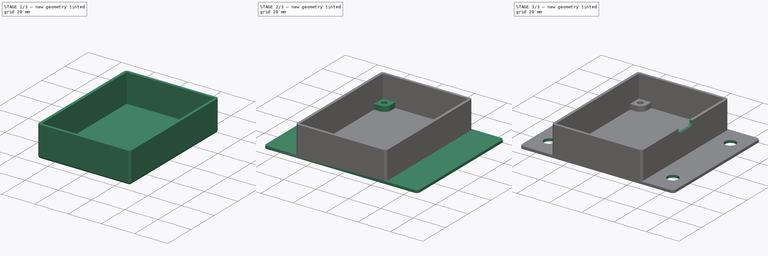
[diagram: build sequence overview — one tinted view per stage of 3, left to right]
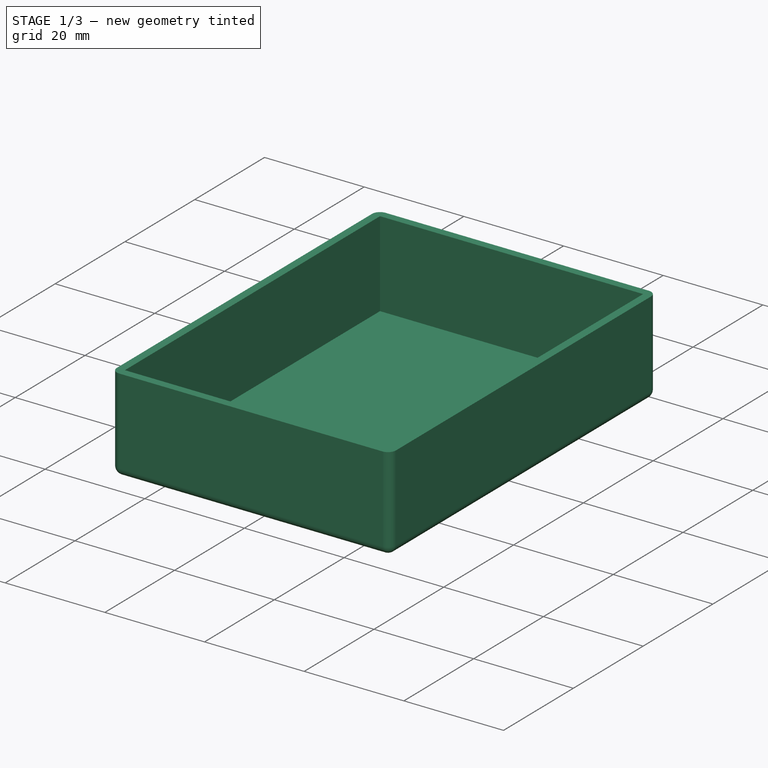
[diagram: stage 1 of 3 — iso view after this stage's code; geometry added in this stage tinted green]
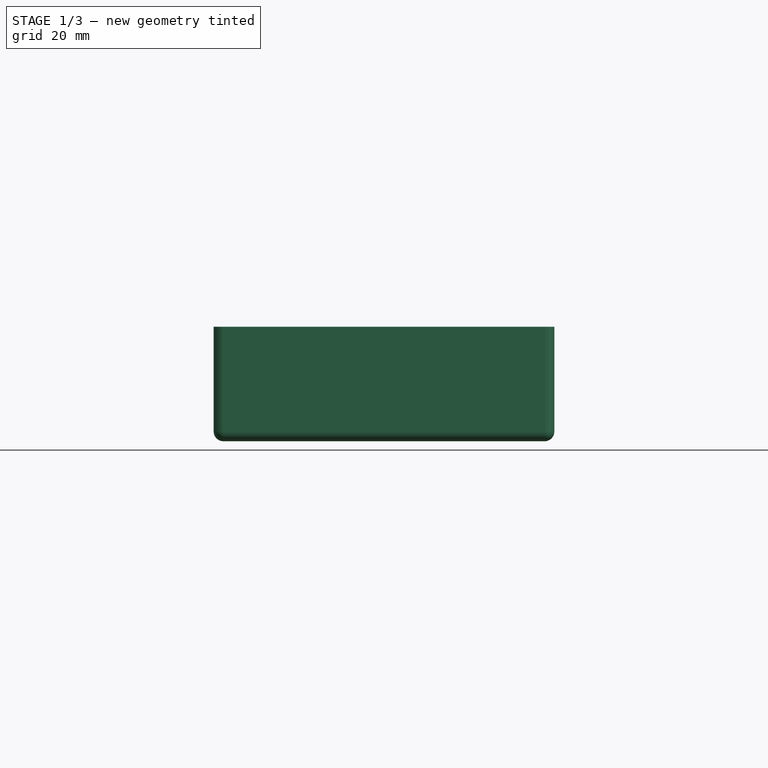
[diagram: stage 1 of 3 — front view after this stage's code; geometry added in this stage tinted green]
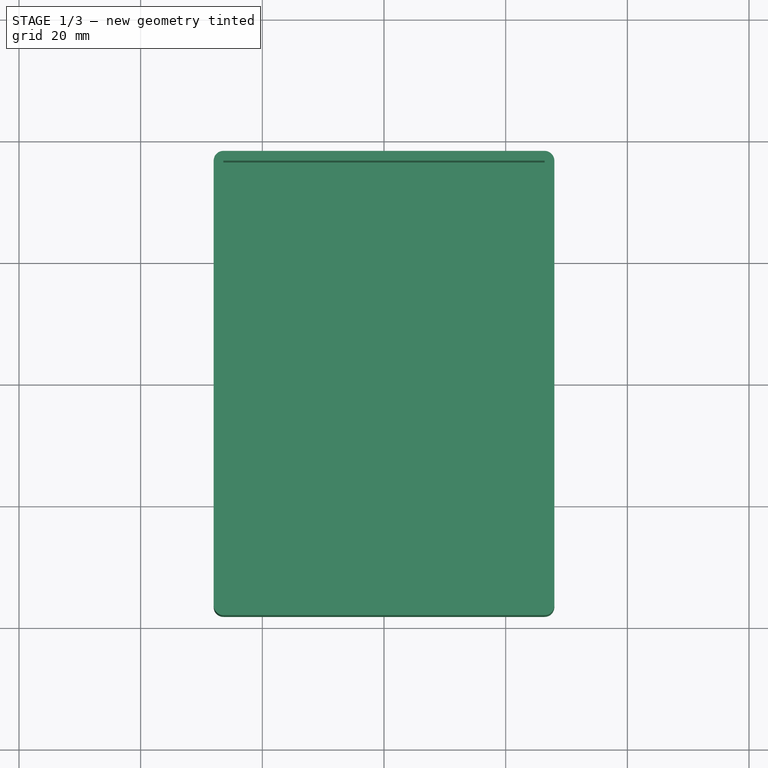
[diagram: stage 1 of 3 — top view after this stage's code; geometry added in this stage tinted green]
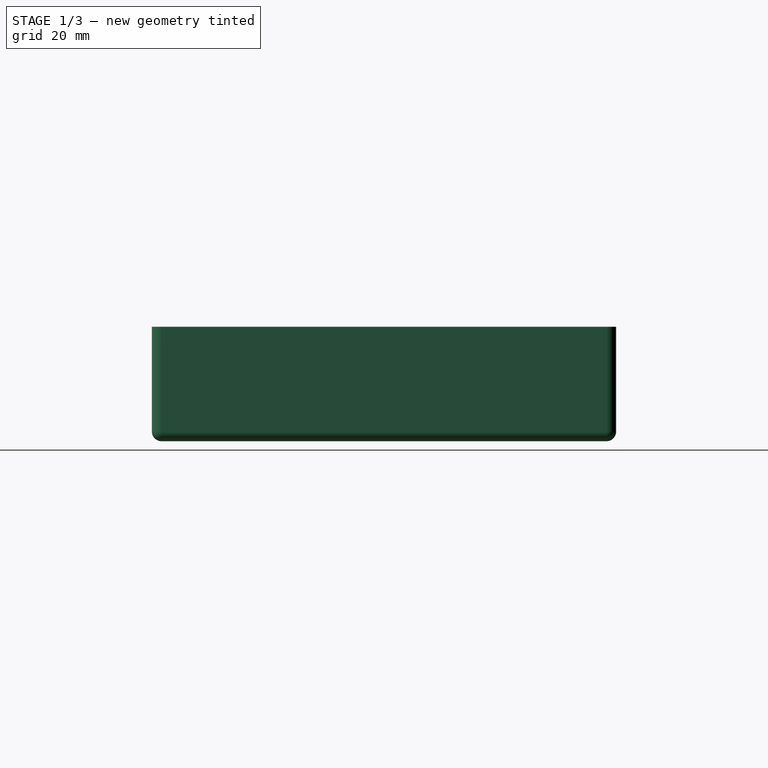
[diagram: stage 1 of 3 — right view after this stage's code; geometry added in this stage tinted green]
FCSTD DOCUMENT  (FreeCAD 1.0R39285 (Git))
Label: feather_tripler_enclosure
License: All rights reserved
LicenseURL: https://en.wikipedia.org/wiki/All_rights_reserved
objects: Sketcher::SketchObject×5, PartDesign::Pad×3, PartDesign::Mirrored×2, PartDesign::Pocket×2, Spreadsheet::Sheet×1, PartDesign::Thickness×1, PartDesign::MultiTransform×1, PartDesign::Plane×1, PartDesign::Body×1
note: 36 computed .brp shape members not serialized (recipe doc carries the construction recipe); baked Part::Feature solids carry a one-line shape summary decoded from their .brp

FEATURE [Spreadsheet::Sheet] Spreadsheet
  cells = A2='Design Parameters; A4='thread_insert_2_56_length; B4(thread_insert_2_56_length)==0.115 in; A5='thread_insert_2_56_hole_diameter; B5(thread_insert_2_56_hole_diameter)==0.1315 in; A6='thread_insert_2_56_bottom_margin; B6(thread_insert_2_56_bottom_margin)==1 mm; A8='feather3_length; B8(feather3_length)==2.8 in; A9='feather3_width; B9(feather3_width)==2 in; A10='feather3_lengthwise_hole_spacing; B10(feather3_lengthwise_hole_spacing)==3 * 0.7 in + 2 * 0.25 in; A11='feather3_widthwise_hole_spacing; B11(feather3_widthwise_hole_spacing)==1.8 in; A12='feather3_usb_clearance_width; B12(feather3_usb_clearance_width)==11 mm; A13='feather3_usb_clearance_depth; B13(feather3_usb_clearance_depth)==2.5 mm; A14='feather3_inside_margin; B14(feather3_inside_margin)==1 mm; A15='feather3_stack_height; B15(feather3_stack_height)==14 mm; A16='feather3_mount_insert_hole_diameter; B16(feather3_mount_insert_hole_diameter)==0.1315 in; A17='feather3_mount_insert_length; B17(feather3_mount_insert_length)==0.115 in; A18='feather3_mount_insert_length_margin; B18(feather3_mount_insert_length_margin)==0.3 mm; A19='feather3_mount_hole_boss_height; B19(feather3_mount_hole_boss_height)==feather3_mount_insert_length + feather3_mount_insert_length_margin; A20='feather3_mount_hole_boss_radius; B20(feather3_mount_hole_boss_radius)==0.5 * 2.5 * feather3_mount_insert_hole_diameter; A22='enclosure_inside_height; B22(enclosure_inside_height)==feather3_stack_height + feather3_mount_hole_boss_height; A23='enclosure_inside_width; B23(enclosure_inside_width)==feather3_width + 2 * feather3_inside_margin; A24='enclosure_inside_length; B24(enclosure_inside_length)==feather3_length + 2 * feather3_inside_margin; A25='enclosure_minimum_wall_thickness; B25(enclosure_minimum_wall_thickness)==1.6 mm; A26='enclosure_wall_thickness; B26(enclosure_wall_thickness)==max(enclosure_minimum_wall_thickness; thread_insert_2_56_length - feather3_mount_hole_boss_height + thread_insert_2_56_bottom_margin); A28='mount_flange_hole_spacing_widthwise; B28(mount_flange_hole_spacing_widthwise)==3 in; A29='mount_flange_hole_spacing_lengthwise; B29(mount_flange_hole_spacing_lengthwise)==2 in; A30='mount_flange_hole_diameter; B30(mount_flange_hole_diameter)==0.266 in; A31='mount_flange_washer_diameter; B31(mount_flange_washer_diameter)==0.625 in; A32='mount_flange_washer_margin; B32(mount_flange_washer_margin)==1.5 mm; A33='mount_flange_width; B33(mount_flange_width)==max(2 * mount_flange_washer_diameter + 4 * mount_flange_washer_margin + enclosure_inside_width + 2 * enclosure_wall_thickness; mount_flange_hole_spacing_widthwise + mount_flange_washer_diameter + 2 * mount_flange_washer_margin); A34='mount_flange_length; B34(mount_flange_length)==enclosure_inside_length + 2 * enclosure_wall_thickness; A35='mount_flange_thickness; B35(mount_flange_thickness)==enclosure_wall_thickness; A36='mount_flange_fillet_radius; B36(mount_flange_fillet_radius)==2 mm; A38='usb_cutout_width; B38(usb_cutout_width)==12 mm; A39='usb_cutout_depth; B39(usb_cutout_depth)==3 mm; A40='usb_cutout_radius; B40(usb_cutout_radius)==2 mm; A41='right_side_datum_plane_offset; B41(right_side_datum_plane_offset)==0.5 * enclosure_inside_width + enclosure_wall_thickness
FEATURE [Sketcher::SketchObject] Sketch  label="BaseSketch"
  ArcFitTolerance = 1e-06
  AttachmentSupport = -> [XY_Plane]
  FullyConstrained = true
  MakeInternals = false
  MapMode = 5
  expr: Constraints[10] = Spreadsheet.enclosure_inside_width
  expr: Constraints[11] = Spreadsheet.enclosure_inside_length
  sketch-geometry (5):
    g0: LineSegment StartX=-26.4 StartY=36.56 StartZ=0 EndX=-26.4 EndY=-36.56 EndZ=0
    g1: LineSegment StartX=-26.4 StartY=-36.56 StartZ=0 EndX=26.4 EndY=-36.56 EndZ=0
    g2: LineSegment StartX=26.4 StartY=-36.56 StartZ=0 EndX=26.4 EndY=36.56 EndZ=0
    g3: LineSegment StartX=26.4 StartY=36.56 StartZ=0 EndX=-26.4 EndY=36.56 EndZ=0
    g4: GeomPoint [constr] X=0 Y=0 Z=0
  constraints (12):
    c: Coincident(g0,g1)
    c: Coincident(g1,g2)
    c: Coincident(g2,g3)
    c: Coincident(g3,g0)
    c: Vertical(g0)
    c: Vertical(g2)
    c: Horizontal(g1)
    c: Horizontal(g3)
    c: Symmetric(g2,g0,g4)
    c: Coincident(g4,g-1)
    c: DistanceX(g3,g3) = 52.8
    c: DistanceY(g0,g0) = 73.12
FEATURE [PartDesign::Pad] Pad  label="BasePad"
  Direction = (0,0,1)
  Length = 17.221
  Length2 = 10
  Profile = -> Sketch
  ReferenceAxis = -> Sketch [N_Axis]
  Refine = true
  Suppressed = false
  Type = 0
  expr: Length = Spreadsheet.enclosure_inside_height
FEATURE [PartDesign::Thickness] Thickness  label="BaseThickness"
  Base = -> Pad [Face6]
  BaseFeature = -> Pad
  Intersection = false
  Join = 0
  Mode = 0
  Refine = true
  SupportTransform = false
  Suppressed = false
  Value = 1.6
  expr: Value = Spreadsheet.enclosure_wall_thickness
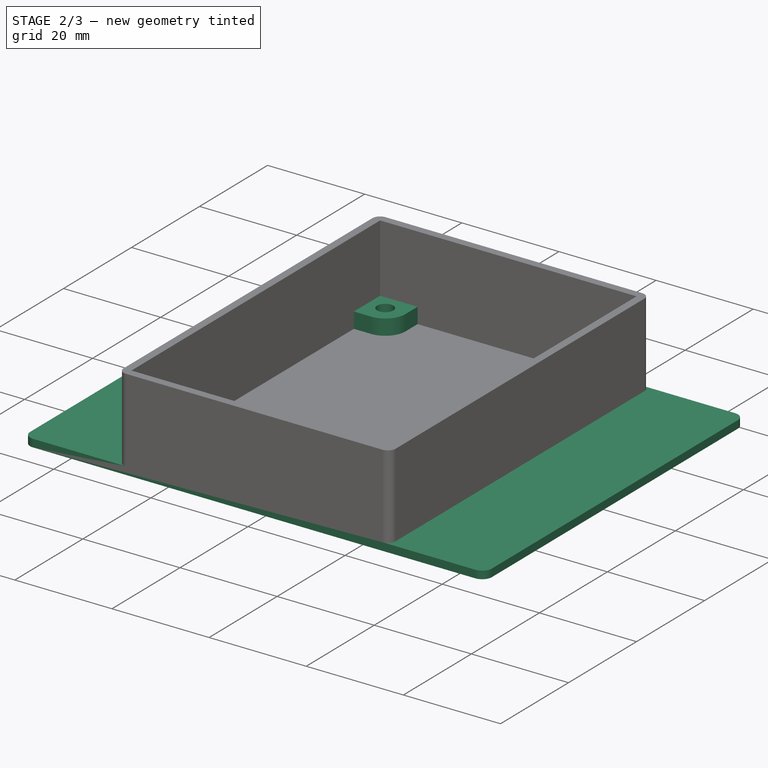
[diagram: stage 2 of 3 — iso view after this stage's code; geometry added in this stage tinted green]
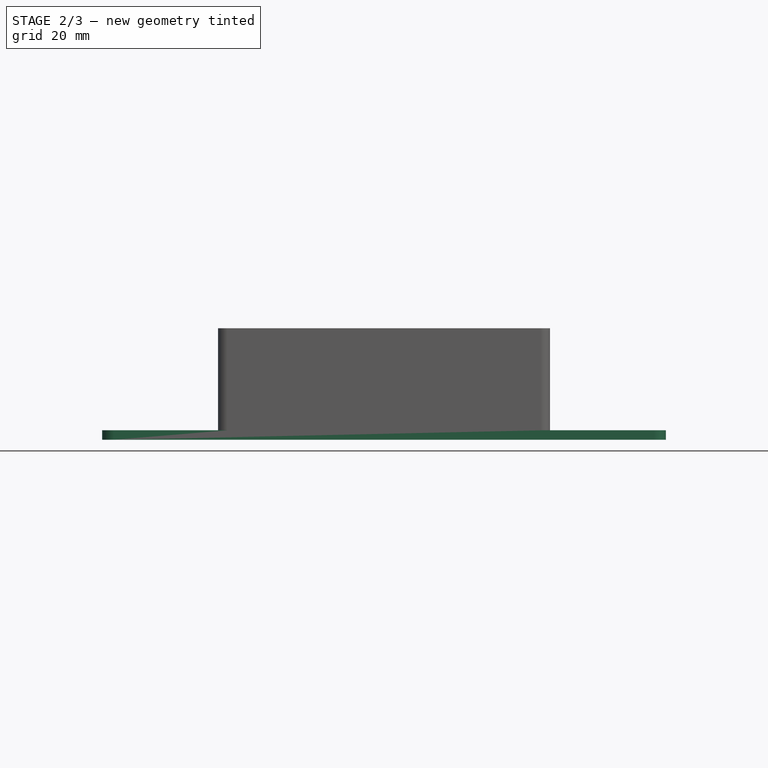
[diagram: stage 2 of 3 — front view after this stage's code; geometry added in this stage tinted green]
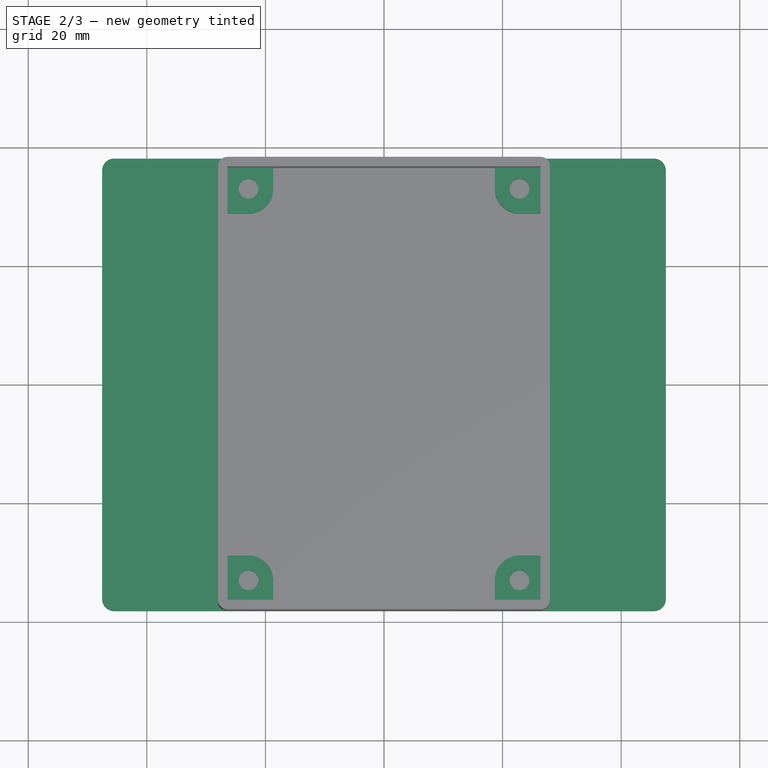
[diagram: stage 2 of 3 — top view after this stage's code; geometry added in this stage tinted green]
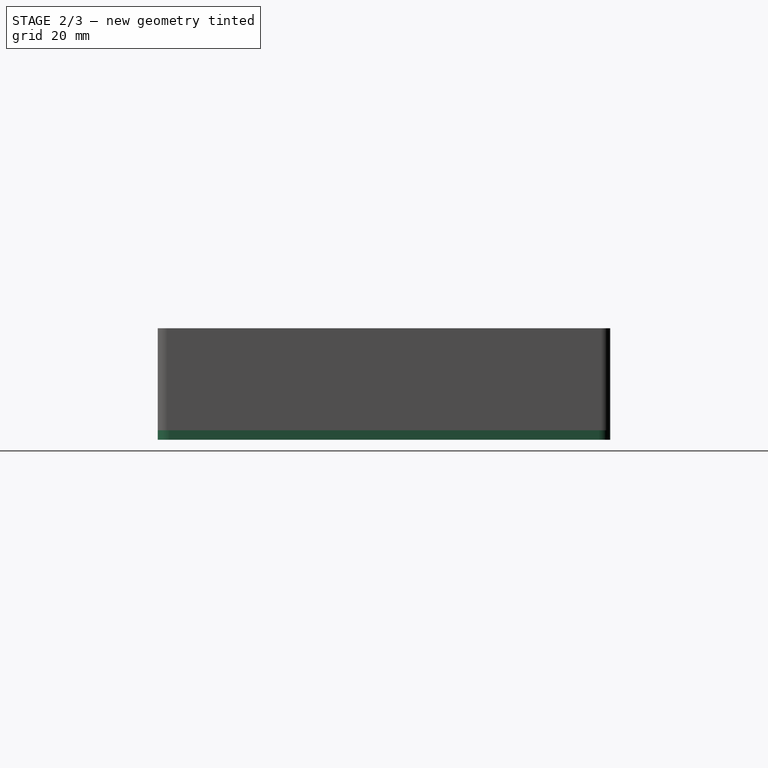
[diagram: stage 2 of 3 — right view after this stage's code; geometry added in this stage tinted green]
FEATURE [Sketcher::SketchObject] Sketch001  label="MountHoleBossSketch"
  ArcFitTolerance = 1e-06
  AttachmentSupport = -> [XY_Plane]
  FullyConstrained = true
  MakeInternals = false
  MapMode = 5
  expr: Constraints[10] = Spreadsheet.feather3_widthwise_hole_spacing
  expr: Constraints[11] = Spreadsheet.feather3_lengthwise_hole_spacing
  expr: Constraints[22] = Spreadsheet.enclosure_inside_width
  expr: Constraints[23] = Spreadsheet.enclosure_inside_length
  expr: Constraints[27] = Spreadsheet.feather3_mount_hole_boss_radius
  expr: Constraints[39] = Spreadsheet.feather3_mount_insert_hole_diameter
  sketch-geometry (16):
    g0: LineSegment [constr] StartX=-22.86 StartY=33.02 StartZ=0 EndX=-22.86 EndY=-33.02 EndZ=0
    g1: LineSegment [constr] StartX=-22.86 StartY=-33.02 StartZ=0 EndX=22.86 EndY=-33.02 EndZ=0
    g2: LineSegment [constr] StartX=22.86 StartY=-33.02 StartZ=0 EndX=22.86 EndY=33.02 EndZ=0
    g3: LineSegment [constr] StartX=22.86 StartY=33.02 StartZ=0 EndX=-22.86 EndY=33.02 EndZ=0
    g4: GeomPoint [constr] X=0 Y=0 Z=0
    g5: LineSegment [constr] StartX=-26.4 StartY=36.56 StartZ=0 EndX=-26.4 EndY=-36.56 EndZ=0
    g6: LineSegment [constr] StartX=-26.4 StartY=-36.56 StartZ=0 EndX=26.4 EndY=-36.56 EndZ=0
    g7: LineSegment [constr] StartX=26.4 StartY=-36.56 StartZ=0 EndX=26.4 EndY=36.56 EndZ=0
    g8: LineSegment [constr] StartX=26.4 StartY=36.56 StartZ=0 EndX=-26.4 EndY=36.56 EndZ=0
    g9: GeomPoint [constr] X=0 Y=0 Z=0
    g10: ArcOfCircle CenterX=-22.86 CenterY=33.02 CenterZ=0 NormalX=0 NormalY=0 NormalZ=1 AngleXU=0 Radius=4.17513 StartAngle=4.71239 EndAngle=6.28319
    g11: LineSegment StartX=-22.86 StartY=28.8449 StartZ=0 EndX=-26.4 EndY=28.8449 EndZ=0
    g12: LineSegment StartX=-18.6849 StartY=33.02 StartZ=0 EndX=-18.6849 EndY=36.56 EndZ=0
    g13: LineSegment StartX=-26.4 StartY=28.8449 StartZ=0 EndX=-26.4 EndY=36.56 EndZ=0
    g14: LineSegment StartX=-26.4 StartY=36.56 StartZ=0 EndX=-18.6849 EndY=36.56 EndZ=0
    g15: Circle CenterX=-22.86 CenterY=33.02 CenterZ=0 NormalX=0 NormalY=0 NormalZ=1 AngleXU=0 Radius=1.67005
  constraints (40):
    c: Coincident(g0,g1)
    c: Coincident(g1,g2)
    c: Coincident(g2,g3)
    c: Coincident(g3,g0)
    c: Vertical(g0)
    c: Vertical(g2)
    c: Horizontal(g1)
    c: Horizontal(g3)
    c: Symmetric(g2,g0,g4)
    c: Coincident(g4,g-1)
    c: DistanceX(g1,g1) = 45.72
    c: DistanceY(g2,g2) = 66.04
    c: Coincident(g5,g6)
    c: Coincident(g6,g7)
    c: Coincident(g7,g8)
    c: Coincident(g8,g5)
    c: Vertical(g5)
    c: Vertical(g7)
    c: Horizontal(g6)
    c: Horizontal(g8)
    c: Symmetric(g7,g5,g9)
    c: Coincident(g9,g4)
    c: DistanceX(g6,g6) = 52.8
    c: DistanceY(g7,g7) = 73.12
    c: Coincident(g10,g0)
    c: PointOnObject(g10,g3)
    c: PointOnObject(g10,g0)
    c: Radius(g10) = 4.17513
    c: Coincident(g11,g10)
    c: Horizontal(g11)
    c: PointOnObject(g11,g5)
    c: Coincident(g12,g10)
    c: Vertical(g12)
    c: PointOnObject(g12,g8)
    c: Coincident(g13,g11)
    c: Coincident(g13,g5)
    c: Coincident(g14,g5)
    c: Coincident(g14,g12)
    c: Coincident(g15,g0)
    c: Diameter(g15) = 3.3401
FEATURE [PartDesign::Pad] Pad001  label="MountHoleBossPad"
  BaseFeature = -> Thickness
  Direction = (0,0,1)
  Length = 3.221
  Length2 = 10
  Profile = -> Sketch001
  ReferenceAxis = -> Sketch001 [N_Axis]
  Refine = true
  Suppressed = false
  Type = 0
  expr: Length = Spreadsheet.feather3_mount_hole_boss_height
FEATURE [PartDesign::Mirrored] Mirrored
  MirrorPlane = -> YZ_Plane
  Refine = true
  Suppressed = false
  TransformMode = 0
FEATURE [PartDesign::Mirrored] Mirrored001
  MirrorPlane = -> XZ_Plane
  Refine = true
  Suppressed = false
  TransformMode = 0
FEATURE [PartDesign::MultiTransform] MultiTransform  label="MountHoleBossMultiTransform"
  BaseFeature = -> Pad001
  Originals = -> [Pad001]
  Refine = true
  Suppressed = false
  TransformMode = 0
  Transformations = -> [Mirrored,Mirrored001]
FEATURE [Sketcher::SketchObject] Sketch002  label="MountFlangeSketch"
  ArcFitTolerance = 1e-06
  AttachmentSupport = -> [XY_Plane]
  FullyConstrained = true
  MakeInternals = false
  MapMode = 5
  expr: Constraints[19] = Spreadsheet.mount_flange_fillet_radius
  expr: Constraints[21] = Spreadsheet.mount_flange_length
  expr: Constraints[22] = Spreadsheet.mount_flange_width
  sketch-geometry (10):
    g0: LineSegment StartX=-47.5375 StartY=36.16 StartZ=0 EndX=-47.5375 EndY=-36.16 EndZ=0
    g1: LineSegment StartX=-45.5375 StartY=-38.16 StartZ=0 EndX=45.5375 EndY=-38.16 EndZ=0
    g2: LineSegment StartX=47.5375 StartY=-36.16 StartZ=0 EndX=47.5375 EndY=36.16 EndZ=0
    g3: LineSegment StartX=45.5375 StartY=38.16 StartZ=0 EndX=-45.5375 EndY=38.16 EndZ=0
    g4: ArcOfCircle CenterX=-45.5375 CenterY=36.16 CenterZ=0 NormalX=0 NormalY=0 NormalZ=1 AngleXU=0 Radius=2 StartAngle=1.5708 EndAngle=3.14159
    g5: ArcOfCircle CenterX=-45.5375 CenterY=-36.16 CenterZ=0 NormalX=0 NormalY=0 NormalZ=1 AngleXU=0 Radius=2 StartAngle=3.14159 EndAngle=4.71239
    g6: ArcOfCircle CenterX=45.5375 CenterY=-36.16 CenterZ=0 NormalX=0 NormalY=0 NormalZ=1 AngleXU=0 Radius=2 StartAngle=4.71239 EndAngle=6.28319
    g7: ArcOfCircle CenterX=45.5375 CenterY=36.16 CenterZ=0 NormalX=0 NormalY=0 NormalZ=1 AngleXU=0 Radius=2 StartAngle=1.6e-15 EndAngle=1.5708
    g8: GeomPoint [constr] X=-47.5375 Y=38.16 Z=0
    g9: GeomPoint [constr] X=47.5375 Y=-38.16 Z=0
  constraints (23):
    c: Tangent(g0,g4) = -1.5708
    c: Tangent(g0,g5) = -1.5708
    c: Tangent(g1,g5) = -1.5708
    c: Tangent(g1,g6) = -1.5708
    c: Tangent(g2,g6) = -1.5708
    c: Tangent(g2,g7) = -1.5708
    c: Tangent(g3,g7) = -1.5708
    c: Tangent(g3,g4) = -1.5708
    c: Vertical(g0)
    c: Vertical(g2)
    c: Horizontal(g1)
    c: Horizontal(g3)
    c: Equal(g4,g5)
    c: Equal(g5,g6)
    c: Equal(g6,g7)
    c: PointOnObject(g8,g0)
    c: PointOnObject(g8,g3)
    c: PointOnObject(g9,g1)
    c: PointOnObject(g9,g2)
    c: Radius(g5) = 2
    c: Symmetric(g4,g6,g-1)
    c: DistanceY(g1,g3) = 76.32
    c: DistanceX(g0,g9) = 95.075
FEATURE [PartDesign::Pad] Pad002  label="MountFlangePad"
  BaseFeature = -> MultiTransform
  Direction = (0,0,1)
  Length = 1.6
  Length2 = 10
  Profile = -> Sketch002
  ReferenceAxis = -> Sketch002 [N_Axis]
  Refine = true
  Reversed = true
  Suppressed = false
  Type = 0
  expr: Length = Spreadsheet.mount_flange_thickness
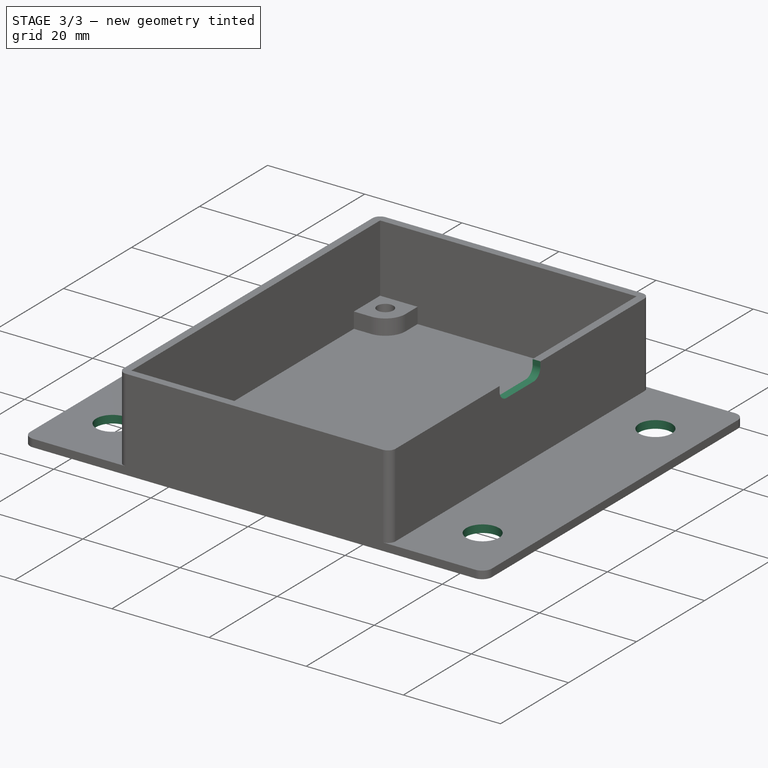
[diagram: stage 3 of 3 — iso view after this stage's code; geometry added in this stage tinted green]
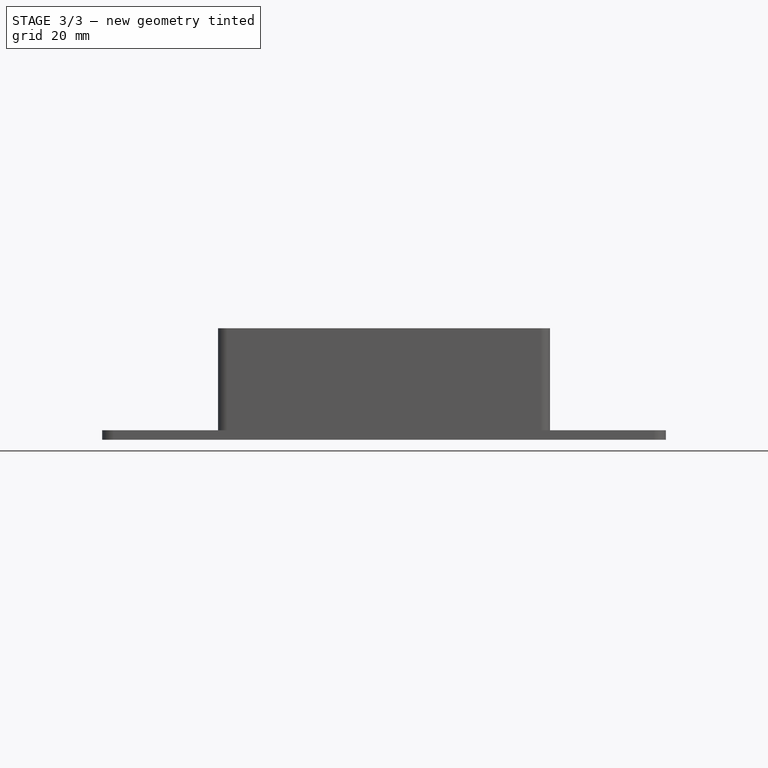
[diagram: stage 3 of 3 — front view after this stage's code; geometry added in this stage tinted green]
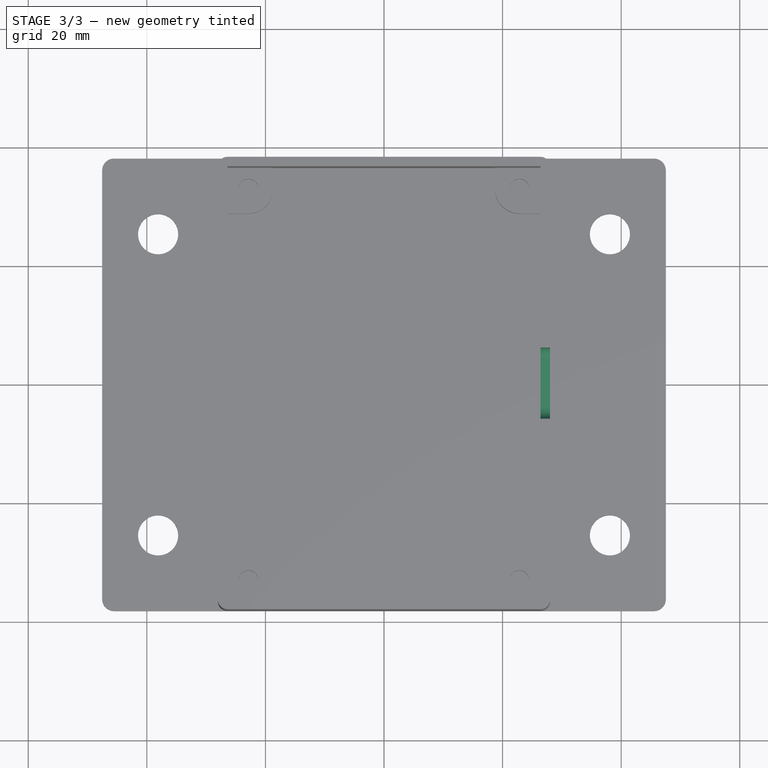
[diagram: stage 3 of 3 — top view after this stage's code; geometry added in this stage tinted green]
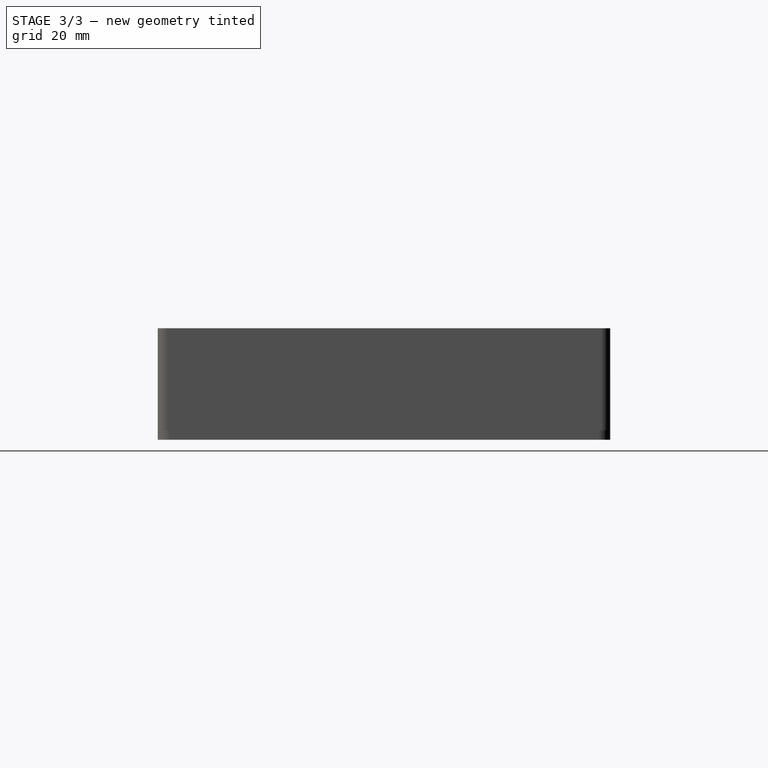
[diagram: stage 3 of 3 — right view after this stage's code; geometry added in this stage tinted green]
FEATURE [Sketcher::SketchObject] Sketch003  label="MountFlangeHoleSketch"
  ArcFitTolerance = 1e-06
  AttachmentSupport = -> [XY_Plane]
  FullyConstrained = true
  MakeInternals = false
  MapMode = 5
  expr: Constraints[10] = Spreadsheet.mount_flange_hole_spacing_widthwise
  expr: Constraints[11] = Spreadsheet.mount_flange_hole_spacing_lengthwise
  expr: Constraints[19] = Spreadsheet.mount_flange_hole_diameter
  sketch-geometry (9):
    g0: LineSegment [constr] StartX=-38.1 StartY=25.4 StartZ=0 EndX=-38.1 EndY=-25.4 EndZ=0
    g1: LineSegment [constr] StartX=-38.1 StartY=-25.4 StartZ=0 EndX=38.1 EndY=-25.4 EndZ=0
    g2: LineSegment [constr] StartX=38.1 StartY=-25.4 StartZ=0 EndX=38.1 EndY=25.4 EndZ=0
    g3: LineSegment [constr] StartX=38.1 StartY=25.4 StartZ=0 EndX=-38.1 EndY=25.4 EndZ=0
    g4: GeomPoint [constr] X=0 Y=0 Z=0
    g5: Circle CenterX=-38.1 CenterY=25.4 CenterZ=0 NormalX=0 NormalY=0 NormalZ=1 AngleXU=0 Radius=3.3782
    g6: Circle CenterX=38.1 CenterY=25.4 CenterZ=0 NormalX=0 NormalY=0 NormalZ=1 AngleXU=0 Radius=3.3782
    g7: Circle CenterX=-38.1 CenterY=-25.4 CenterZ=0 NormalX=0 NormalY=0 NormalZ=1 AngleXU=0 Radius=3.3782
    g8: Circle CenterX=38.1 CenterY=-25.4 CenterZ=0 NormalX=0 NormalY=0 NormalZ=1 AngleXU=0 Radius=3.3782
  constraints (20):
    c: Coincident(g0,g1)
    c: Coincident(g1,g2)
    c: Coincident(g2,g3)
    c: Coincident(g3,g0)
    c: Vertical(g0)
    c: Vertical(g2)
    c: Horizontal(g1)
    c: Horizontal(g3)
    c: Symmetric(g2,g0,g4)
    c: Coincident(g4,g-1)
    c: DistanceX(g1,g1) = 76.2
    c: DistanceY(g2,g2) = 50.8
    c: Coincident(g5,g0)
    c: Coincident(g6,g2)
    c: Coincident(g7,g0)
    c: Coincident(g8,g1)
    c: Equal(g5,g7)
    c: Equal(g7,g8)
    c: Equal(g8,g6)
    c: Diameter(g5) = 6.7564
FEATURE [PartDesign::Pocket] Pocket  label="MountFlangeHolePocket"
  BaseFeature = -> Pad002
  Direction = (0,0,-1)
  Length = 5
  Length2 = 5
  Profile = -> Sketch003
  ReferenceAxis = -> Sketch003 [N_Axis]
  Refine = true
  Suppressed = false
  Type = 1
FEATURE [PartDesign::Plane] DatumPlane
  AttachmentOffset = pos=(0,0,28) rot=(0,0,1;0rad)
  AttachmentSupport = -> [YZ_Plane]
  Length = 88.6748
  MapMode = 5
  Placement = pos=(28,0,0) rot=(0.57735,0.57735,0.57735;2.0944rad)
  ResizeMode = 0
  Width = 62.3548
  expr: .AttachmentOffset.Base.z = Spreadsheet.right_side_datum_plane_offset
FEATURE [Sketcher::SketchObject] Sketch004  label="USBCutoutSketch"
  ArcFitTolerance = 1e-06
  AttachmentSupport = -> [DatumPlane]
  FullyConstrained = true
  MakeInternals = false
  MapMode = 5
  Placement = pos=(28,0,0) rot=(0.57735,0.57735,0.57735;2.0944rad)
  expr: Constraints[19] = Spreadsheet.usb_cutout_radius
  expr: Constraints[2] = Spreadsheet.enclosure_inside_height
  expr: Constraints[5] = Spreadsheet.usb_cutout_width
  expr: Constraints[9] = Spreadsheet.usb_cutout_depth
  sketch-geometry (8):
    g0: LineSegment [constr] StartX=0 StartY=0 StartZ=0 EndX=0 EndY=17.221 EndZ=0
    g1: LineSegment StartX=-6 StartY=17.221 StartZ=0 EndX=6 EndY=17.221 EndZ=0
    g2: LineSegment StartX=-4 StartY=14.221 StartZ=0 EndX=4 EndY=14.221 EndZ=0
    g3: LineSegment [constr] StartX=0 StartY=17.221 StartZ=0 EndX=0 EndY=14.221 EndZ=0
    g4: LineSegment StartX=-6 StartY=17.221 StartZ=0 EndX=-6 EndY=16.221 EndZ=0
    g5: LineSegment StartX=6 StartY=17.221 StartZ=0 EndX=6 EndY=16.221 EndZ=0
    g6: ArcOfCircle CenterX=-4 CenterY=16.221 CenterZ=0 NormalX=0 NormalY=0 NormalZ=1 AngleXU=0 Radius=2 StartAngle=3.14159 EndAngle=4.71239
    g7: ArcOfCircle CenterX=4 CenterY=16.221 CenterZ=0 NormalX=0 NormalY=0 NormalZ=1 AngleXU=0 Radius=2 StartAngle=4.71239 EndAngle=6.28319
  constraints (20):
    c: Coincident(g0,g-1)
    c: Vertical(g0)
    c: Distance(g0,g0) = 17.221
    c: Horizontal(g1)
    c: Symmetric(g1,g1,g0)
    c: DistanceX(g1,g1) = 12
    c: Horizontal(g2)
    c: Coincident(g3,g0)
    c: Vertical(g3)
    c: DistanceY(g3,g3) = 3
    c: Symmetric(g2,g2,g3)
    c: Coincident(g4,g1)
    c: Vertical(g4)
    c: Coincident(g5,g1)
    c: Vertical(g5)
    c: Tangent(g6,g4) = -1.5708
    c: Tangent(g6,g2) = -1.5708
    c: Tangent(g7,g5) = 1.5708
    c: Tangent(g7,g2) = -1.5708
    c: Radius(g7) = 2
FEATURE [PartDesign::Pocket] Pocket001  label="USBCutoutPocket"
  BaseFeature = -> Pocket
  Direction = (-1,0,0)
  Length = 1.6
  Length2 = 5
  Profile = -> Sketch004
  ReferenceAxis = -> Sketch004 [N_Axis]
  Refine = true
  Suppressed = false
  Type = 0
  expr: Length = Spreadsheet.enclosure_wall_thickness
FEATURE [PartDesign::Body] Body
  AllowCompound = false
  Group = -> [Sketch,Pad,Thickness,Sketch001,Pad001,MultiTransform,Mirrored,Mirrored001,Sketch002,Pad002,Sketch003,Pocket,DatumPlane,Sketch004,Pocket001]
  Origin = -> Origin
  Tip = -> Pocket001
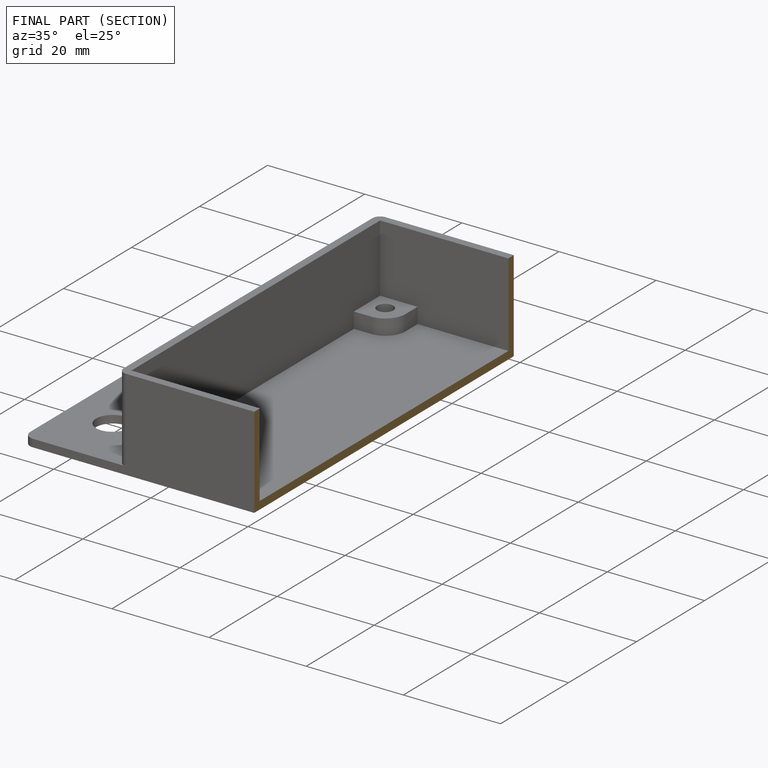
[diagram: finished part — half-section view (interior)]
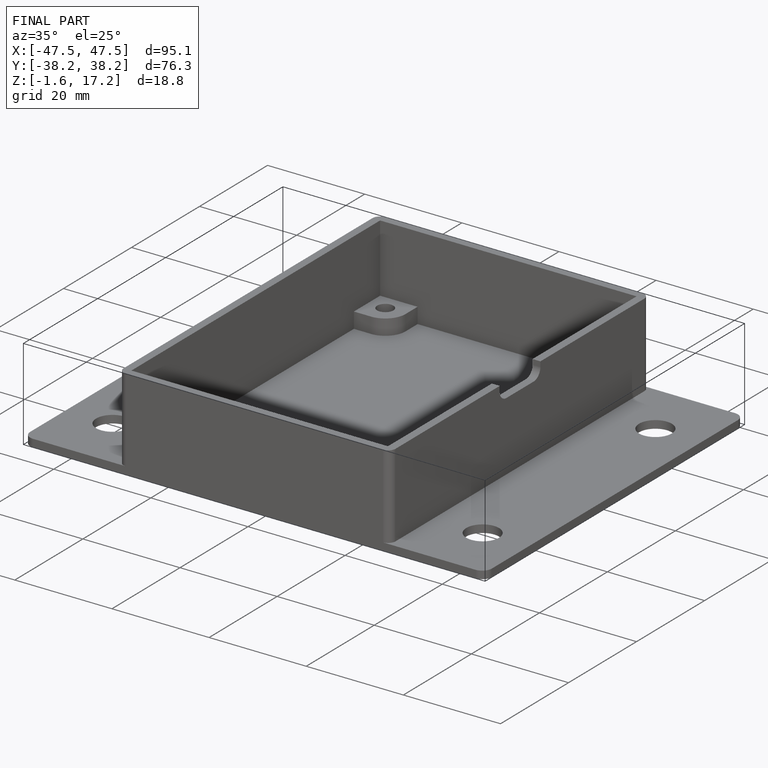
[diagram: finished part — iso view with bounding-box wireframe]
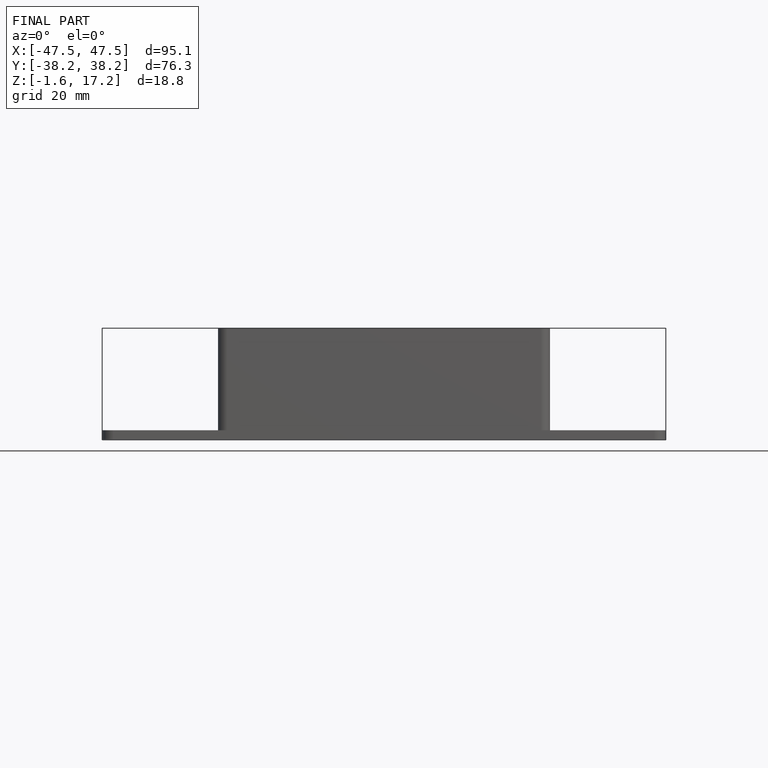
[diagram: finished part — front view with bounding-box wireframe]
